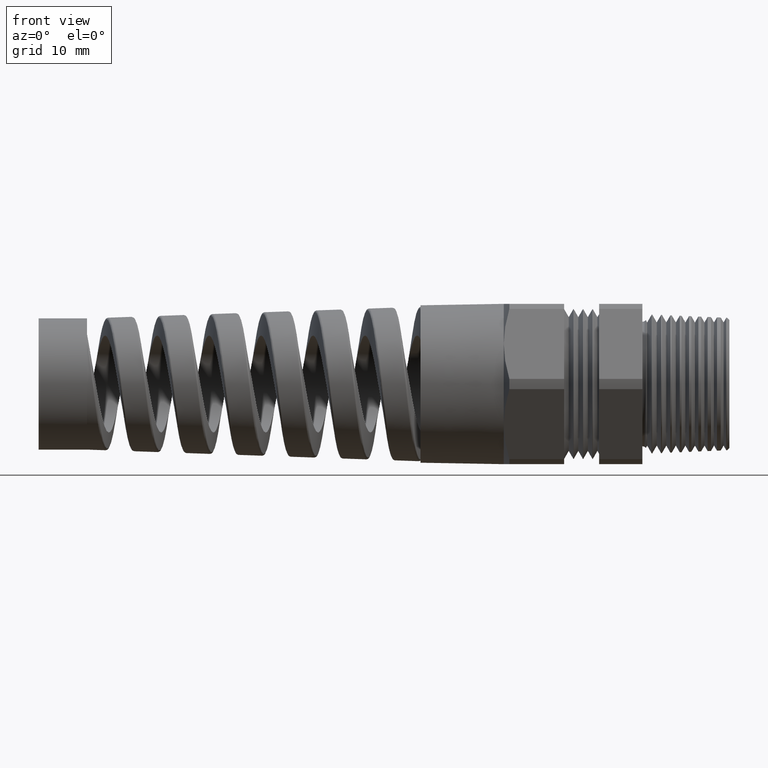
[diagram: clean part render]
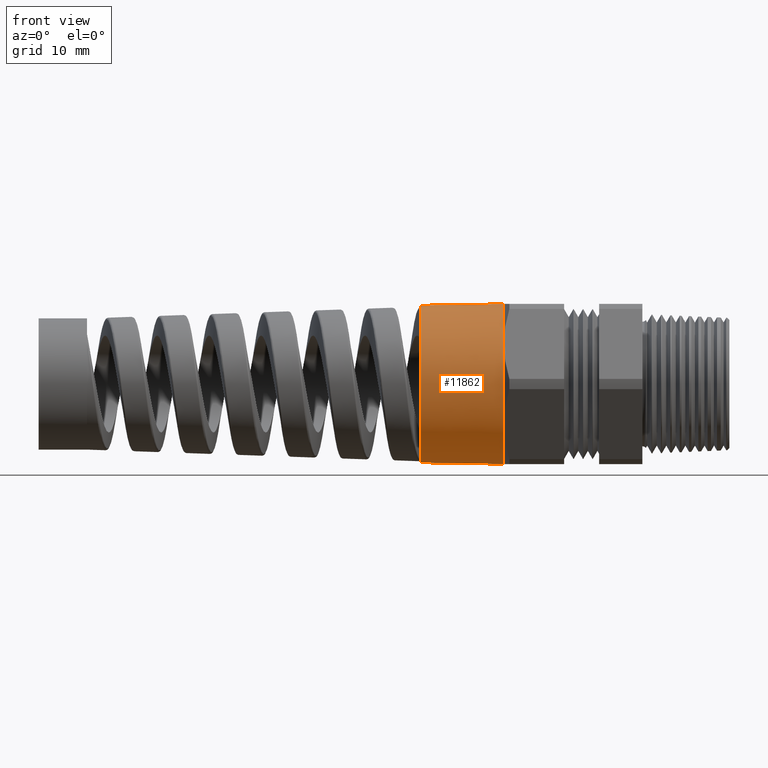
[diagram: same view with one face highlighted and labeled with its STEP entity id]
A machine part, front view. The second image highlights one B-rep face of the part: STEP entity #11862.
In plain terms, the highlighted conical surface has half-angle 1 deg.
Its self-contained STEP definition (entity closure, byte-faithful):
#10551 = FACE_OUTER_BOUND ( 'NONE', #12353, .T. ) ;
#10569 = DIRECTION ( 'NONE',  ( 0.0000000000000000000, 0.0000000000000000000, 1.000000000000000000 ) ) ;
#10570 = DIRECTION ( 'NONE',  ( 1.000000000000000000, 0.0000000000000000000, 0.0000000000000000000 ) ) ;
#10571 = AXIS2_PLACEMENT_3D ( 'NONE', #10574, #10570, #10569 ) ;
#10572 = CONICAL_SURFACE ( 'NONE', #10571, 0.4699999999999997500, 0.01745329251994333400 ) ;
#10574 = CARTESIAN_POINT ( 'NONE',  ( -0.8125000000000000000, 0.0000000000000000000, 0.0000000000000000000 ) ) ;
#10663 = DIRECTION ( 'NONE',  ( 0.0000000000000000000, 0.0000000000000000000, 1.000000000000000000 ) ) ;
#10920 = CARTESIAN_POINT ( 'NONE',  ( -1.301020000000000100, -5.703626231520601100E-017, -0.4614728516812668400 ) ) ;
#10922 = CARTESIAN_POINT ( 'NONE',  ( -0.8125000000000001100, -0.4070319397786860100, -0.2350000000000000100 ) ) ;
#10923 = DIRECTION ( 'NONE',  ( 0.0000000000000000000, 0.0000000000000000000, 1.000000000000000000 ) ) ;
#10924 = DIRECTION ( 'NONE',  ( -1.000000000000000000, 0.0000000000000000000, 0.0000000000000000000 ) ) ;
#10925 = CARTESIAN_POINT ( 'NONE',  ( -0.8125000000000000000, 0.0000000000000000000, 0.0000000000000000000 ) ) ;
#10926 = AXIS2_PLACEMENT_3D ( 'NONE', #10925, #10924, #10923 ) ;
#10927 = CIRCLE ( 'NONE', #10926, 0.4699999999999997000 ) ;
#10946 = DIRECTION ( 'NONE',  ( -1.000000000000000000, 0.0000000000000000000, 0.0000000000000000000 ) ) ;
#10947 = CARTESIAN_POINT ( 'NONE',  ( -1.301020000000000100, 0.0000000000000000000, 0.0000000000000000000 ) ) ;
#10948 = AXIS2_PLACEMENT_3D ( 'NONE', #10947, #10946, #10663 ) ;
#10949 = CIRCLE ( 'NONE', #10948, 0.4614728516812668400 ) ;
#10951 = DIRECTION ( 'NONE',  ( 0.9998476951563912700, -2.137303368083796300E-018, -0.01745240643728355000 ) ) ;
#10952 = VECTOR ( 'NONE', #10951, 39.37007874015748100 ) ;
#10953 = CARTESIAN_POINT ( 'NONE',  ( -0.8125000000000000000, -5.755839955992557200E-017, -0.4699999999999997500 ) ) ;
#10954 = LINE ( 'NONE', #10953, #10952 ) ;
#11028 = CARTESIAN_POINT ( 'NONE',  ( -1.301020000000000100, 0.0000000000000000000, 0.4614728516812668400 ) ) ;
#11029 = CARTESIAN_POINT ( 'NONE',  ( -0.8125000000000000000, 0.0000000000000000000, -0.4699999999999999200 ) ) ;
#11176 = CIRCLE ( 'NONE', #11234, 0.4699999999999997000 ) ;
#11185 = CARTESIAN_POINT ( 'NONE',  ( -0.8125000000000001100, 0.0000000000000000000, 0.4699999999999997000 ) ) ;
#11214 = CARTESIAN_POINT ( 'NONE',  ( -0.8125000000000000000, -0.4070319397786860100, 0.2349999999999999600 ) ) ;
#11220 = DIRECTION ( 'NONE',  ( 0.0000000000000000000, 0.0000000000000000000, 1.000000000000000000 ) ) ;
#11221 = DIRECTION ( 'NONE',  ( -1.000000000000000000, 0.0000000000000000000, 0.0000000000000000000 ) ) ;
#11222 = CARTESIAN_POINT ( 'NONE',  ( -0.8125000000000000000, 0.0000000000000000000, 0.0000000000000000000 ) ) ;
#11223 = AXIS2_PLACEMENT_3D ( 'NONE', #11222, #11221, #11220 ) ;
#11228 = CIRCLE ( 'NONE', #11223, 0.4699999999999997000 ) ;
#11231 = DIRECTION ( 'NONE',  ( 0.0000000000000000000, 0.0000000000000000000, 1.000000000000000000 ) ) ;
#11232 = DIRECTION ( 'NONE',  ( -1.000000000000000000, 0.0000000000000000000, 0.0000000000000000000 ) ) ;
#11233 = CARTESIAN_POINT ( 'NONE',  ( -0.8125000000000000000, 0.0000000000000000000, 0.0000000000000000000 ) ) ;
#11234 = AXIS2_PLACEMENT_3D ( 'NONE', #11233, #11232, #11231 ) ;
#11261 = DIRECTION ( 'NONE',  ( 0.9998476951563912700, 0.0000000000000000000, 0.01745240643728355000 ) ) ;
#11262 = VECTOR ( 'NONE', #11261, 39.37007874015748100 ) ;
#11263 = CARTESIAN_POINT ( 'NONE',  ( -0.8125000000000000000, 0.0000000000000000000, 0.4699999999999997500 ) ) ;
#11264 = LINE ( 'NONE', #11263, #11262 ) ;
#11862 = ADVANCED_FACE ( 'NONE', ( #10551 ), #10572, .T. ) ;
#12343 = EDGE_CURVE ( 'NONE', #12351, #12345, #10927, .T. ) ;
#12345 = VERTEX_POINT ( 'NONE', #10922 ) ;
#12346 = VERTEX_POINT ( 'NONE', #10920 ) ;
#12347 = ORIENTED_EDGE ( 'NONE', *, *, #12343, .T. ) ;
#12348 = EDGE_CURVE ( 'NONE', #12346, #12351, #10954, .T. ) ;
#12349 = EDGE_CURVE ( 'NONE', #12346, #12352, #10949, .T. ) ;
#12350 = ORIENTED_EDGE ( 'NONE', *, *, #12348, .T. ) ;
#12351 = VERTEX_POINT ( 'NONE', #11029 ) ;
#12352 = VERTEX_POINT ( 'NONE', #11028 ) ;
#12353 = EDGE_LOOP ( 'NONE', ( #12354, #12350, #12347, #12384, #12431, #12466 ) ) ;
#12354 = ORIENTED_EDGE ( 'NONE', *, *, #12349, .F. ) ;
#12384 = ORIENTED_EDGE ( 'NONE', *, *, #12437, .T. ) ;
#12430 = VERTEX_POINT ( 'NONE', #11185 ) ;
#12431 = ORIENTED_EDGE ( 'NONE', *, *, #12440, .T. ) ;
#12437 = EDGE_CURVE ( 'NONE', #12345, #12449, #11176, .T. ) ;
#12440 = EDGE_CURVE ( 'NONE', #12449, #12430, #11228, .T. ) ;
#12449 = VERTEX_POINT ( 'NONE', #11214 ) ;
#12455 = EDGE_CURVE ( 'NONE', #12352, #12430, #11264, .T. ) ;
#12466 = ORIENTED_EDGE ( 'NONE', *, *, #12455, .F. ) ;